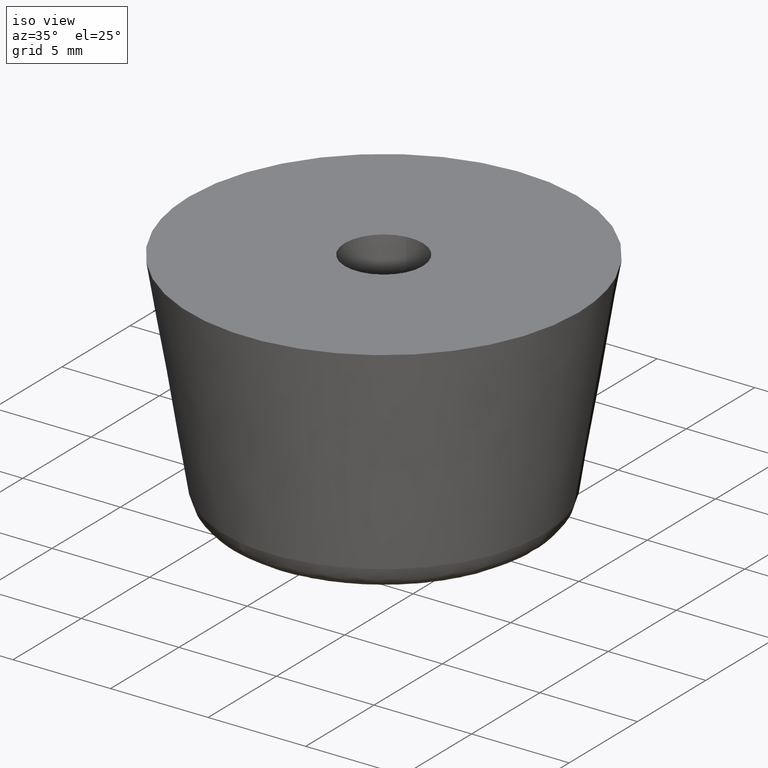
[diagram: clean part render]
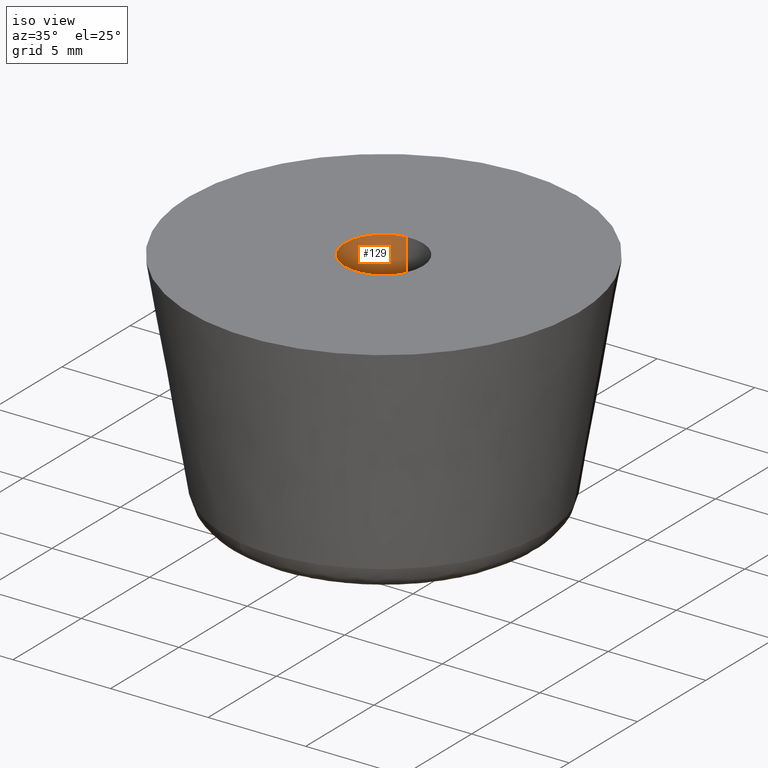
[diagram: same view with one face highlighted and labeled with its STEP entity id]
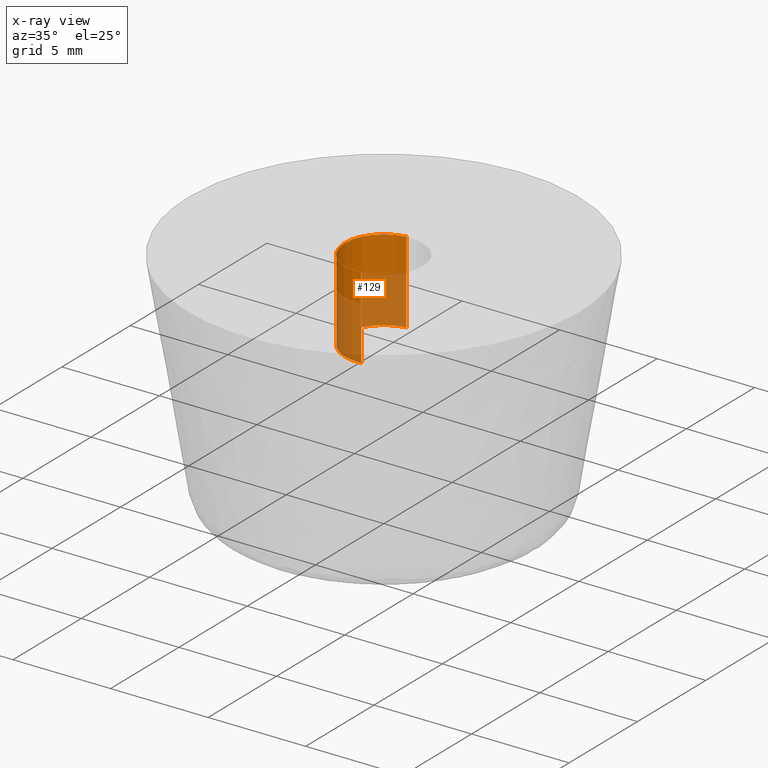
[diagram: x-ray of the same camera — body ghosted, the highlighted face saturated]
A machine part, iso view. The second image highlights one B-rep face of the part: STEP entity #129.
The next image is the same camera in x-ray: the body ghosted, the highlighted face saturated — about 55% of this face is hidden behind the body in this view.
In plain terms, the highlighted cylindrical surface (partial cylindrical patch) has radius 2 mm, axis along (-0, -0, 1).
Its self-contained STEP definition (entity closure, byte-faithful):
#129=ADVANCED_FACE('',(#309),#308,.F.);
#308=CYLINDRICAL_SURFACE('',#486,2.00000000000E+000);
#309=FACE_OUTER_BOUND('',#487,.T.);
#483=CARTESIAN_POINT('',(-2.10947594860E-014,-2.49619879441E-015,1.21050000000E+001));
#484=DIRECTION('',(-9.55794820187E-015,-1.13610702712E-015,1.00000000000E+000));
#485=DIRECTION('',(1.18034234657E-001,-9.93009526364E-001,-1.02354702452E-028));
#486=AXIS2_PLACEMENT_3D('',#483,#484,#485);
#487=EDGE_LOOP('',(#602,#603,#604,#605,#606,#607));
#602=ORIENTED_EDGE('',*,*,#639,.F.);
#603=ORIENTED_EDGE('',*,*,#641,.F.);
#604=ORIENTED_EDGE('',*,*,#674,.F.);
#605=ORIENTED_EDGE('',*,*,#651,.T.);
#606=ORIENTED_EDGE('',*,*,#653,.T.);
#607=ORIENTED_EDGE('',*,*,#675,.T.);
#639=EDGE_CURVE('',#821,#822,#823,.T.);
#641=EDGE_CURVE('',#829,#821,#836,.T.);
#651=EDGE_CURVE('',#905,#906,#907,.T.);
#653=EDGE_CURVE('',#906,#913,#920,.T.);
#674=EDGE_CURVE('',#905,#829,#1060,.T.);
#675=EDGE_CURVE('',#913,#822,#1066,.T.);
#821=VERTEX_POINT('',#1177);
#822=VERTEX_POINT('',#1178);
#823=CIRCLE('',#1182,2.00000000000E+000);
#829=VERTEX_POINT('',#1183);
#836=CIRCLE('',#1191,2.00000000000E+000);
#905=VERTEX_POINT('',#1237);
#906=VERTEX_POINT('',#1238);
#907=CIRCLE('',#1242,2.00000000000E+000);
#913=VERTEX_POINT('',#1243);
#920=CIRCLE('',#1251,2.00000000000E+000);
#1060=(BOUNDED_CURVE() B_SPLINE_CURVE(1,(#1338,#1339),.UNSPECIFIED.,.F.,.F.) B_SPLINE_CURVE_WITH_KNOTS((2,2),(8.33333313467E-002,9.16666670832E-001),.UNSPECIFIED.) CURVE() GEOMETRIC_REPRESENTATION_ITEM() RATIONAL_B_SPLINE_CURVE((1.00000000000E+000,1.00000000000E+000)) REPRESENTATION_ITEM('') );
#1066=(BOUNDED_CURVE() B_SPLINE_CURVE(1,(#1340,#1341),.UNSPECIFIED.,.F.,.F.) B_SPLINE_CURVE_WITH_KNOTS((2,2),(8.33333333333E-002,9.16666666667E-001),.UNSPECIFIED.) CURVE() GEOMETRIC_REPRESENTATION_ITEM() RATIONAL_B_SPLINE_CURVE((7.50000000000E-001,7.50000000000E-001)) REPRESENTATION_ITEM('') );
#1177=CARTESIAN_POINT('',(-2.00000000000E+000,1.66533453694E-016,1.20000000000E+001));
#1178=CARTESIAN_POINT('',(-2.36411791321E-001,1.98597821361E+000,1.20000000000E+001));
#1179=CARTESIAN_POINT('',(8.88178419700E-016,6.66133814775E-016,1.20000000000E+001));
#1180=DIRECTION('',(7.28591463049E-014,1.22381376299E-014,-1.00000000000E+000));
#1181=DIRECTION('',(-1.00000000000E+000,9.71445146547E-017,-7.28591463049E-014));
#1182=AXIS2_PLACEMENT_3D('',#1179,#1180,#1181);
#1183=CARTESIAN_POINT('',(2.36067743038E-001,-1.98601913906E+000,1.20000000000E+001));
#1188=CARTESIAN_POINT('',(8.88178419700E-016,6.66133814775E-016,1.20000000000E+001));
#1189=DIRECTION('',(7.28591463049E-014,1.22381376299E-014,-1.00000000000E+000));
#1190=DIRECTION('',(-1.00000000000E+000,9.71445146547E-017,-7.28591463049E-014));
#1191=AXIS2_PLACEMENT_3D('',#1188,#1189,#1190);
#1237=CARTESIAN_POINT('',(2.36067743038E-001,-1.98601913906E+000,7.80000000000E+000));
#1238=CARTESIAN_POINT('',(-2.00000000000E+000,1.66533453694E-016,7.80000000000E+000));
#1239=CARTESIAN_POINT('',(8.88178419700E-016,6.66133814775E-016,7.80000000000E+000));
#1240=DIRECTION('',(6.07921388613E-015,2.06425309482E-015,-1.00000000000E+000));
#1241=DIRECTION('',(-1.00000000000E+000,9.71445146547E-017,-6.07921388613E-015));
#1242=AXIS2_PLACEMENT_3D('',#1239,#1240,#1241);
#1243=CARTESIAN_POINT('',(-2.36411791321E-001,1.98597821361E+000,7.80000000000E+000));
#1248=CARTESIAN_POINT('',(8.88178419700E-016,6.66133814775E-016,7.80000000000E+000));
#1249=DIRECTION('',(6.07921388613E-015,2.06425309482E-015,-1.00000000000E+000));
#1250=DIRECTION('',(-1.00000000000E+000,9.71445146547E-017,-6.07921388613E-015));
#1251=AXIS2_PLACEMENT_3D('',#1248,#1249,#1250);
#1338=CARTESIAN_POINT('',(2.36068469314E-001,-1.98601905273E+000,7.79999998999E+000));
#1339=CARTESIAN_POINT('',(2.36068469313E-001,-1.98601905273E+000,1.20000000210E+001));
#1340=CARTESIAN_POINT('',(-2.36068469313E-001,1.98601905273E+000,7.80000000000E+000));
#1341=CARTESIAN_POINT('',(-2.36068469314E-001,1.98601905273E+000,1.20000000000E+001));